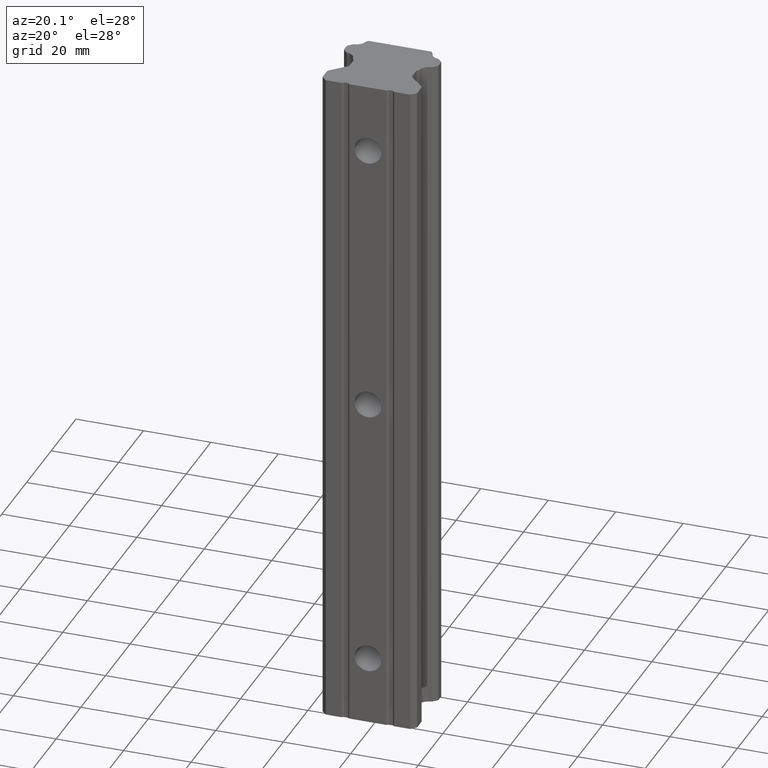
[diagram: clean part render]
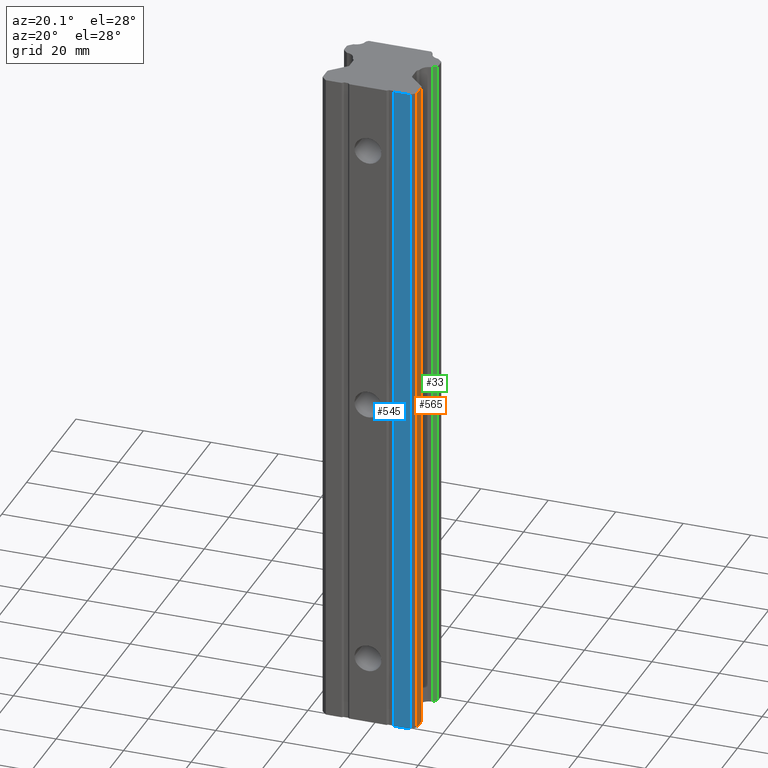
[diagram: same view with three faces highlighted in distinct colors, each labeled with its STEP entity id]
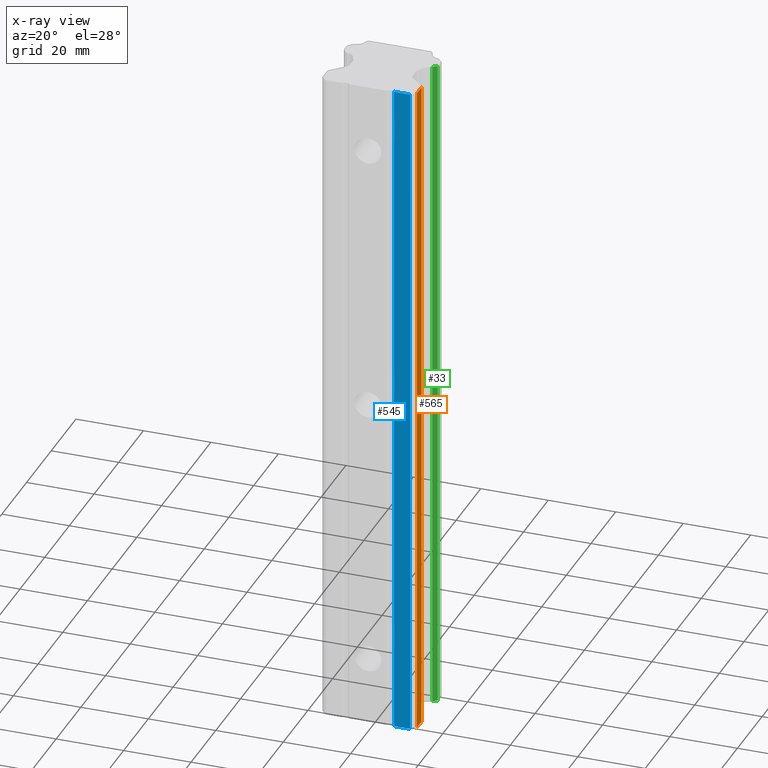
[diagram: x-ray of the same camera — body ghosted, the three highlighted faces saturated]
A machine part, auxiliary view with three faces highlighted in distinct colors.
The next image is the same camera in x-ray (body ghosted, the three faces saturated) — at least one of them is partly hidden behind the body in this view.
Their STEP definitions:

[orange] entity #565 — the highlighted planar face has unit normal (1, 0, 0).
#291 = EDGE_CURVE ( 'NONE', #371, #372, #1335, .T. ) ;
#371 = VERTEX_POINT ( 'NONE', #1414 ) ;
#372 = VERTEX_POINT ( 'NONE', #1413 ) ;
#501 = VERTEX_POINT ( 'NONE', #1494 ) ;
#503 = VERTEX_POINT ( 'NONE', #1493 ) ;
#562 = EDGE_CURVE ( 'NONE', #503, #501, #1701, .T. ) ;
#565 = ADVANCED_FACE ( 'NONE', ( #1693 ), #1692, .T. ) ;
#566 = EDGE_LOOP ( 'NONE', ( #567, #568, #570, #571 ) ) ;
#567 = ORIENTED_EDGE ( 'NONE', *, *, #562, .T. ) ;
#568 = ORIENTED_EDGE ( 'NONE', *, *, #569, .T. ) ;
#569 = EDGE_CURVE ( 'NONE', #501, #371, #1687, .T. ) ;
#570 = ORIENTED_EDGE ( 'NONE', *, *, #291, .T. ) ;
#571 = ORIENTED_EDGE ( 'NONE', *, *, #572, .F. ) ;
#572 = EDGE_CURVE ( 'NONE', #503, #372, #1683, .T. ) ;
#1332 = DIRECTION ( 'NONE',  ( 0.0000000000000000000, 0.0000000000000000000, 1.000000000000000000 ) ) ;
#1333 = VECTOR ( 'NONE', #1332, 1000.000000000000000 ) ;
#1334 = CARTESIAN_POINT ( 'NONE',  ( 14.00000000000000000, -20.89027119516000000, -100.0000000000000000 ) ) ;
#1335 = LINE ( 'NONE', #1334, #1333 ) ;
#1413 = CARTESIAN_POINT ( 'NONE',  ( 14.00000000000000000, -20.89027119516000000, 100.0000000000000000 ) ) ;
#1414 = CARTESIAN_POINT ( 'NONE',  ( 14.00000000000000000, -20.89027119516000000, -100.0000000000000000 ) ) ;
#1493 = CARTESIAN_POINT ( 'NONE',  ( 14.00000000000000000, -24.50000000000000000, 100.0000000000000000 ) ) ;
#1494 = CARTESIAN_POINT ( 'NONE',  ( 14.00000000000000000, -24.50000000000000000, -100.0000000000000000 ) ) ;
#1680 = DIRECTION ( 'NONE',  ( 0.0000000000000000000, 1.000000000000000000, 0.0000000000000000000 ) ) ;
#1681 = VECTOR ( 'NONE', #1680, 1000.000000000000000 ) ;
#1682 = CARTESIAN_POINT ( 'NONE',  ( 14.00000000000000000, 0.0000000000000000000, 100.0000000000000000 ) ) ;
#1683 = LINE ( 'NONE', #1682, #1681 ) ;
#1684 = DIRECTION ( 'NONE',  ( 0.0000000000000000000, 1.000000000000000000, 0.0000000000000000000 ) ) ;
#1685 = VECTOR ( 'NONE', #1684, 1000.000000000000000 ) ;
#1686 = CARTESIAN_POINT ( 'NONE',  ( 14.00000000000000000, 0.0000000000000000000, -100.0000000000000000 ) ) ;
#1687 = LINE ( 'NONE', #1686, #1685 ) ;
#1688 = DIRECTION ( 'NONE',  ( 0.0000000000000000000, 0.0000000000000000000, -1.000000000000000000 ) ) ;
#1689 = DIRECTION ( 'NONE',  ( 1.000000000000000000, 0.0000000000000000000, 0.0000000000000000000 ) ) ;
#1690 = CARTESIAN_POINT ( 'NONE',  ( 14.00000000000000000, -24.50000000000000000, -100.0000000000000000 ) ) ;
#1691 = AXIS2_PLACEMENT_3D ( 'NONE', #1690, #1689, #1688 ) ;
#1692 = PLANE ( 'NONE',  #1691 ) ;
#1693 = FACE_OUTER_BOUND ( 'NONE', #566, .T. ) ;
#1698 = DIRECTION ( 'NONE',  ( 0.0000000000000000000, 0.0000000000000000000, -1.000000000000000000 ) ) ;
#1699 = VECTOR ( 'NONE', #1698, 1000.000000000000000 ) ;
#1700 = CARTESIAN_POINT ( 'NONE',  ( 14.00000000000000000, -24.50000000000000000, -100.0000000000000000 ) ) ;
#1701 = LINE ( 'NONE', #1700, #1699 ) ;

[blue] entity #545 — the highlighted planar face has unit normal (0, -1, 0).
#286 = EDGE_CURVE ( 'NONE', #287, #381, #1346, .T. ) ;
#287 = VERTEX_POINT ( 'NONE', #1342 ) ;
#381 = VERTEX_POINT ( 'NONE', #1400 ) ;
#487 = ORIENTED_EDGE ( 'NONE', *, *, #286, .T. ) ;
#488 = EDGE_CURVE ( 'NONE', #287, #636, #1581, .T. ) ;
#497 = VERTEX_POINT ( 'NONE', #1499 ) ;
#545 = ADVANCED_FACE ( 'NONE', ( #1708 ), #1707, .T. ) ;
#546 = EDGE_LOOP ( 'NONE', ( #487, #634, #575, #577 ) ) ;
#575 = ORIENTED_EDGE ( 'NONE', *, *, #576, .F. ) ;
#576 = EDGE_CURVE ( 'NONE', #636, #497, #1673, .T. ) ;
#577 = ORIENTED_EDGE ( 'NONE', *, *, #488, .F. ) ;
#634 = ORIENTED_EDGE ( 'NONE', *, *, #635, .T. ) ;
#635 = EDGE_CURVE ( 'NONE', #381, #497, #2029, .T. ) ;
#636 = VERTEX_POINT ( 'NONE', #2025 ) ;
#1342 = CARTESIAN_POINT ( 'NONE',  ( 7.749999999999987600, -26.00000000000001400, 100.0000000000000000 ) ) ;
#1343 = DIRECTION ( 'NONE',  ( 0.0000000000000000000, 0.0000000000000000000, -1.000000000000000000 ) ) ;
#1344 = VECTOR ( 'NONE', #1343, 1000.000000000000000 ) ;
#1345 = CARTESIAN_POINT ( 'NONE',  ( 7.750000000000000000, -26.00000000000000400, -100.0000000000000000 ) ) ;
#1346 = LINE ( 'NONE', #1345, #1344 ) ;
#1400 = CARTESIAN_POINT ( 'NONE',  ( 7.749999999999987600, -26.00000000000001400, -100.0000000000000000 ) ) ;
#1499 = CARTESIAN_POINT ( 'NONE',  ( 12.50000000000000000, -26.00000000000000400, -100.0000000000000000 ) ) ;
#1574 = DIRECTION ( 'NONE',  ( 1.000000000000000000, 0.0000000000000000000, 0.0000000000000000000 ) ) ;
#1575 = VECTOR ( 'NONE', #1574, 1000.000000000000000 ) ;
#1576 = CARTESIAN_POINT ( 'NONE',  ( 0.0000000000000000000, -26.00000000000000400, 100.0000000000000000 ) ) ;
#1581 = LINE ( 'NONE', #1576, #1575 ) ;
#1673 = LINE ( 'NONE', #1813, #1812 ) ;
#1703 = DIRECTION ( 'NONE',  ( 0.0000000000000000000, 0.0000000000000000000, -1.000000000000000000 ) ) ;
#1704 = DIRECTION ( 'NONE',  ( 0.0000000000000000000, -1.000000000000000000, 0.0000000000000000000 ) ) ;
#1705 = CARTESIAN_POINT ( 'NONE',  ( 7.750000000000000000, -26.00000000000000400, -100.0000000000000000 ) ) ;
#1706 = AXIS2_PLACEMENT_3D ( 'NONE', #1705, #1704, #1703 ) ;
#1707 = PLANE ( 'NONE',  #1706 ) ;
#1708 = FACE_OUTER_BOUND ( 'NONE', #546, .T. ) ;
#1811 = DIRECTION ( 'NONE',  ( 0.0000000000000000000, 0.0000000000000000000, -1.000000000000000000 ) ) ;
#1812 = VECTOR ( 'NONE', #1811, 1000.000000000000000 ) ;
#1813 = CARTESIAN_POINT ( 'NONE',  ( 12.50000000000000000, -26.00000000000000400, -100.0000000000000000 ) ) ;
#2025 = CARTESIAN_POINT ( 'NONE',  ( 12.50000000000000000, -26.00000000000000400, 100.0000000000000000 ) ) ;
#2026 = DIRECTION ( 'NONE',  ( 1.000000000000000000, 0.0000000000000000000, 0.0000000000000000000 ) ) ;
#2027 = VECTOR ( 'NONE', #2026, 1000.000000000000000 ) ;
#2028 = CARTESIAN_POINT ( 'NONE',  ( 0.0000000000000000000, -26.00000000000000400, -100.0000000000000000 ) ) ;
#2029 = LINE ( 'NONE', #2028, #2027 ) ;

[green] entity #33 — the highlighted planar face has unit normal (0.7071, -0.7071, 0).
#33 = ADVANCED_FACE ( 'NONE', ( #786 ), #785, .T. ) ;
#34 = EDGE_LOOP ( 'NONE', ( #35, #105, #79, #263 ) ) ;
#35 = ORIENTED_EDGE ( 'NONE', *, *, #36, .F. ) ;
#36 = EDGE_CURVE ( 'NONE', #187, #104, #780, .T. ) ;
#69 = EDGE_CURVE ( 'NONE', #70, #107, #940, .T. ) ;
#70 = VERTEX_POINT ( 'NONE', #936 ) ;
#79 = ORIENTED_EDGE ( 'NONE', *, *, #69, .F. ) ;
#104 = VERTEX_POINT ( 'NONE', #1017 ) ;
#105 = ORIENTED_EDGE ( 'NONE', *, *, #106, .T. ) ;
#106 = EDGE_CURVE ( 'NONE', #187, #107, #1016, .T. ) ;
#107 = VERTEX_POINT ( 'NONE', #1012 ) ;
#187 = VERTEX_POINT ( 'NONE', #1147 ) ;
#263 = ORIENTED_EDGE ( 'NONE', *, *, #264, .T. ) ;
#264 = EDGE_CURVE ( 'NONE', #70, #104, #1126, .T. ) ;
#777 = DIRECTION ( 'NONE',  ( 0.0000000000000000000, 0.0000000000000000000, 1.000000000000000000 ) ) ;
#778 = VECTOR ( 'NONE', #777, 1000.000000000000000 ) ;
#779 = CARTESIAN_POINT ( 'NONE',  ( 12.72297497281092900, -8.538705572392927900, -100.0000000000000000 ) ) ;
#780 = LINE ( 'NONE', #779, #778 ) ;
#781 = DIRECTION ( 'NONE',  ( 0.7071067811865474600, 0.7071067811865474600, 0.0000000000000000000 ) ) ;
#782 = DIRECTION ( 'NONE',  ( 0.7071067811865475700, -0.7071067811865475700, 0.0000000000000000000 ) ) ;
#783 = CARTESIAN_POINT ( 'NONE',  ( 12.72297497281999900, -8.538705572380999700, -100.0000000000000000 ) ) ;
#784 = AXIS2_PLACEMENT_3D ( 'NONE', #783, #782, #781 ) ;
#785 = PLANE ( 'NONE',  #784 ) ;
#786 = FACE_OUTER_BOUND ( 'NONE', #34, .T. ) ;
#936 = CARTESIAN_POINT ( 'NONE',  ( 13.82426406871121400, -7.437416476490213300, 100.0000000000000000 ) ) ;
#937 = DIRECTION ( 'NONE',  ( 0.0000000000000000000, 0.0000000000000000000, -1.000000000000000000 ) ) ;
#938 = VECTOR ( 'NONE', #937, 1000.000000000000000 ) ;
#939 = CARTESIAN_POINT ( 'NONE',  ( 13.82426406871092800, -7.437416476490928300, -100.0000000000000000 ) ) ;
#940 = LINE ( 'NONE', #939, #938 ) ;
#1012 = CARTESIAN_POINT ( 'NONE',  ( 13.82426406871121400, -7.437416476490213300, -100.0000000000000000 ) ) ;
#1013 = DIRECTION ( 'NONE',  ( 0.7071067811865474600, 0.7071067811865474600, 0.0000000000000000000 ) ) ;
#1014 = VECTOR ( 'NONE', #1013, 1000.000000000000100 ) ;
#1015 = CARTESIAN_POINT ( 'NONE',  ( 12.72297497281999900, -8.538705572380999700, -100.0000000000000000 ) ) ;
#1016 = LINE ( 'NONE', #1015, #1014 ) ;
#1017 = CARTESIAN_POINT ( 'NONE',  ( 12.72297497281571500, -8.538705572386714200, 100.0000000000000000 ) ) ;
#1126 = LINE ( 'NONE', #1260, #1259 ) ;
#1147 = CARTESIAN_POINT ( 'NONE',  ( 12.72297497281571500, -8.538705572386714200, -100.0000000000000000 ) ) ;
#1258 = DIRECTION ( 'NONE',  ( -0.7071067811865474600, -0.7071067811865474600, 0.0000000000000000000 ) ) ;
#1259 = VECTOR ( 'NONE', #1258, 1000.000000000000100 ) ;
#1260 = CARTESIAN_POINT ( 'NONE',  ( 12.72297497281999900, -8.538705572380999700, 100.0000000000001100 ) ) ;